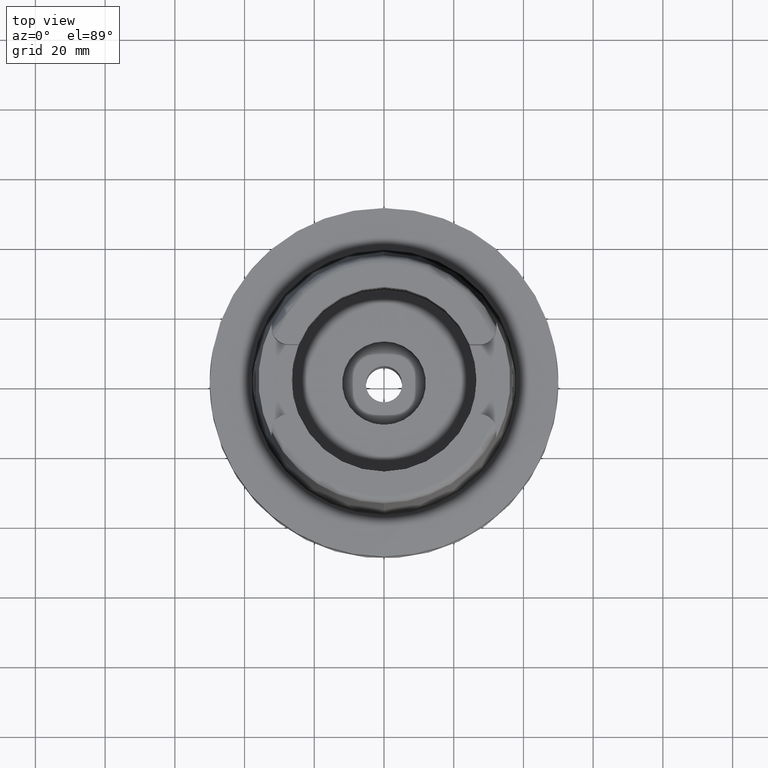
[diagram: clean part render]
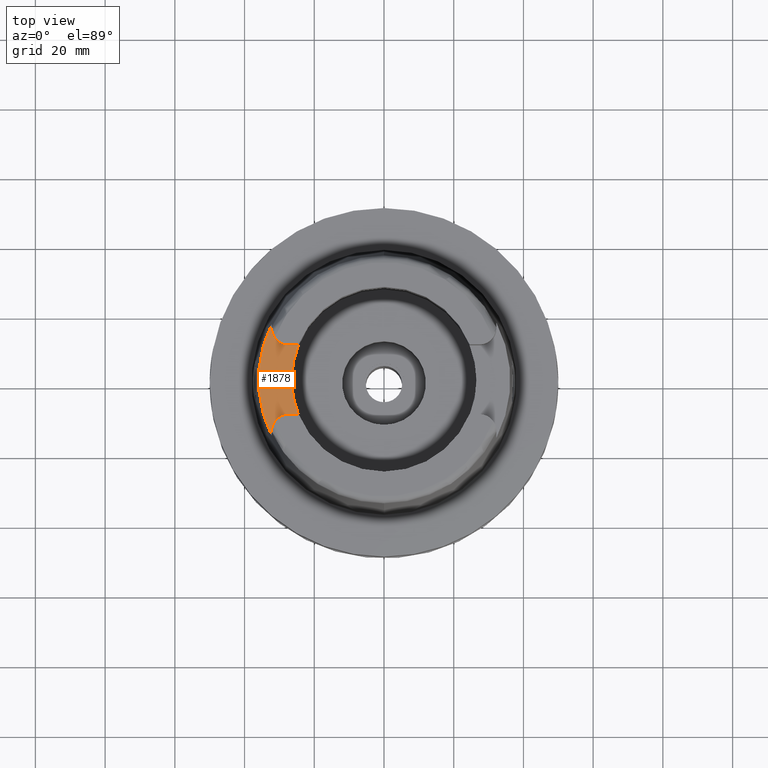
[diagram: same view with one face highlighted and labeled with its STEP entity id]
A machine part, top view. The second image highlights one B-rep face of the part: STEP entity #1878.
In plain terms, the highlighted planar face has unit normal (0, 0, 1).
Its self-contained STEP definition (entity closure, byte-faithful):
#254 = LINE ( 'NONE', #1981, #5022 ) ;
#342 = CARTESIAN_POINT ( 'NONE',  ( -32.25000000000000000, 14.89000000000000057, 40.00000000000000000 ) ) ;
#352 = EDGE_CURVE ( 'NONE', #4466, #421, #2789, .T. ) ;
#394 = DIRECTION ( 'NONE',  ( -1.000000000000000000, -1.244166427442381553E-14, 0.0000000000000000000 ) ) ;
#421 = VERTEX_POINT ( 'NONE', #4272 ) ;
#456 = DIRECTION ( 'NONE',  ( 0.0000000000000000000, 0.0000000000000000000, 1.000000000000000000 ) ) ;
#485 = ORIENTED_EDGE ( 'NONE', *, *, #4785, .F. ) ;
#677 = CARTESIAN_POINT ( 'NONE',  ( 0.0000000000000000000, 0.0000000000000000000, 40.00000000000000000 ) ) ;
#689 = CARTESIAN_POINT ( 'NONE',  ( -32.25000000000000000, -14.89000000000000057, 40.00000000000000000 ) ) ;
#745 = LINE ( 'NONE', #689, #4484 ) ;
#760 = PLANE ( 'NONE',  #1947 ) ;
#780 = VERTEX_POINT ( 'NONE', #1203 ) ;
#977 = AXIS2_PLACEMENT_3D ( 'NONE', #4333, #456, #5082 ) ;
#1164 = EDGE_CURVE ( 'NONE', #780, #2854, #5210, .T. ) ;
#1203 = CARTESIAN_POINT ( 'NONE',  ( -32.24999999999000266, 15.99793480980999938, 40.00000000000000000 ) ) ;
#1303 = CARTESIAN_POINT ( 'NONE',  ( 0.0000000000000000000, 0.0000000000000000000, 40.00000000000000000 ) ) ;
#1313 = DIRECTION ( 'NONE',  ( 4.825266097350802439E-06, -0.9999999999883583124, 1.731606717192930698E-13 ) ) ;
#1663 = CARTESIAN_POINT ( 'NONE',  ( -24.53670515777999839, -10.00999999999999979, 40.00000000000000000 ) ) ;
#1687 = VECTOR ( 'NONE', #2070, 1000.000000000000000 ) ;
#1755 = CARTESIAN_POINT ( 'NONE',  ( -27.36999999999999744, -10.00999999999999979, 40.00000000000000000 ) ) ;
#1829 = VERTEX_POINT ( 'NONE', #4940 ) ;
#1878 = ADVANCED_FACE ( 'NONE', ( #2826 ), #760, .T. ) ;
#1916 = ORIENTED_EDGE ( 'NONE', *, *, #4709, .F. ) ;
#1947 = AXIS2_PLACEMENT_3D ( 'NONE', #677, #2425, #2899 ) ;
#1969 = CARTESIAN_POINT ( 'NONE',  ( -32.25000000000000000, -14.89000000000000057, 40.00000000000000000 ) ) ;
#1981 = CARTESIAN_POINT ( 'NONE',  ( -27.36999999999999744, 10.00999999999999979, 40.00000000000000000 ) ) ;
#2000 = ORIENTED_EDGE ( 'NONE', *, *, #2885, .F. ) ;
#2049 = CIRCLE ( 'NONE', #3760, 4.880000000000002558 ) ;
#2070 = DIRECTION ( 'NONE',  ( -1.000000000000000000, 1.435733797136999970E-13, 0.0000000000000000000 ) ) ;
#2127 = VERTEX_POINT ( 'NONE', #1969 ) ;
#2411 = CIRCLE ( 'NONE', #977, 4.879999999999999005 ) ;
#2425 = DIRECTION ( 'NONE',  ( 0.0000000000000000000, 0.0000000000000000000, 1.000000000000000000 ) ) ;
#2513 = DIRECTION ( 'NONE',  ( 0.0000000000000000000, 0.0000000000000000000, 1.000000000000000000 ) ) ;
#2624 = CARTESIAN_POINT ( 'NONE',  ( -24.53670515777999839, 10.00999999999999979, 40.00000000000000000 ) ) ;
#2789 = CIRCLE ( 'NONE', #4322, 26.50000000000000711 ) ;
#2826 = FACE_OUTER_BOUND ( 'NONE', #5601, .T. ) ;
#2854 = VERTEX_POINT ( 'NONE', #342 ) ;
#2885 = EDGE_CURVE ( 'NONE', #421, #5170, #3725, .T. ) ;
#2899 = DIRECTION ( 'NONE',  ( 1.000000000000000000, 0.0000000000000000000, 0.0000000000000000000 ) ) ;
#2932 = CARTESIAN_POINT ( 'NONE',  ( -27.36999999999999744, 14.89000000000000057, 40.00000000000000000 ) ) ;
#2943 = CIRCLE ( 'NONE', #4309, 35.99995025243999436 ) ;
#3024 = DIRECTION ( 'NONE',  ( -0.9259134021805098813, 0.3777358490566039562, 0.0000000000000000000 ) ) ;
#3036 = ORIENTED_EDGE ( 'NONE', *, *, #4840, .F. ) ;
#3113 = VECTOR ( 'NONE', #1313, 1000.000000000000114 ) ;
#3165 = ORIENTED_EDGE ( 'NONE', *, *, #1164, .F. ) ;
#3345 = CARTESIAN_POINT ( 'NONE',  ( 0.0000000000000000000, 0.0000000000000000000, 40.00000000000000000 ) ) ;
#3605 = CARTESIAN_POINT ( 'NONE',  ( -32.25000534596000534, 15.99791057084999935, 40.00000000000000000 ) ) ;
#3725 = LINE ( 'NONE', #1663, #1687 ) ;
#3760 = AXIS2_PLACEMENT_3D ( 'NONE', #2932, #2513, #394 ) ;
#3880 = ORIENTED_EDGE ( 'NONE', *, *, #352, .F. ) ;
#4182 = ORIENTED_EDGE ( 'NONE', *, *, #5473, .F. ) ;
#4272 = CARTESIAN_POINT ( 'NONE',  ( -24.53670515777999839, -10.00999999999999979, 40.00000000000000000 ) ) ;
#4309 = AXIS2_PLACEMENT_3D ( 'NONE', #3345, #5512, #5535 ) ;
#4322 = AXIS2_PLACEMENT_3D ( 'NONE', #1303, #4358, #3024 ) ;
#4333 = CARTESIAN_POINT ( 'NONE',  ( -27.36999999999999744, -14.89000000000000057, 40.00000000000000000 ) ) ;
#4358 = DIRECTION ( 'NONE',  ( 0.0000000000000000000, 0.0000000000000000000, 1.000000000000000000 ) ) ;
#4466 = VERTEX_POINT ( 'NONE', #2624 ) ;
#4484 = VECTOR ( 'NONE', #5034, 1000.000000000000000 ) ;
#4693 = DIRECTION ( 'NONE',  ( 1.000000000000000000, 1.442003377036999905E-13, 0.0000000000000000000 ) ) ;
#4709 = EDGE_CURVE ( 'NONE', #5206, #4466, #254, .T. ) ;
#4785 = EDGE_CURVE ( 'NONE', #2854, #5206, #2049, .T. ) ;
#4809 = ORIENTED_EDGE ( 'NONE', *, *, #5196, .F. ) ;
#4840 = EDGE_CURVE ( 'NONE', #5170, #2127, #2411, .T. ) ;
#4940 = CARTESIAN_POINT ( 'NONE',  ( -32.24999876011999334, -15.99794043148000000, 40.00000000000000000 ) ) ;
#5022 = VECTOR ( 'NONE', #4693, 1000.000000000000000 ) ;
#5034 = DIRECTION ( 'NONE',  ( 1.119083709707969931E-06, -0.9999999999993738342, -1.731560047848954504E-13 ) ) ;
#5073 = CARTESIAN_POINT ( 'NONE',  ( -27.36999999999999744, 10.00999999999999979, 40.00000000000000000 ) ) ;
#5082 = DIRECTION ( 'NONE',  ( 0.0000000000000000000, 1.000000000000000000, 0.0000000000000000000 ) ) ;
#5170 = VERTEX_POINT ( 'NONE', #1755 ) ;
#5196 = EDGE_CURVE ( 'NONE', #1829, #780, #2943, .T. ) ;
#5206 = VERTEX_POINT ( 'NONE', #5073 ) ;
#5210 = LINE ( 'NONE', #3605, #3113 ) ;
#5473 = EDGE_CURVE ( 'NONE', #2127, #1829, #745, .T. ) ;
#5512 = DIRECTION ( 'NONE',  ( 0.0000000000000000000, 0.0000000000000000000, -1.000000000000000000 ) ) ;
#5535 = DIRECTION ( 'NONE',  ( -0.8958345712659759874, -0.4443876921390880197, 0.0000000000000000000 ) ) ;
#5601 = EDGE_LOOP ( 'NONE', ( #1916, #485, #3165, #4809, #4182, #3036, #2000, #3880 ) ) ;